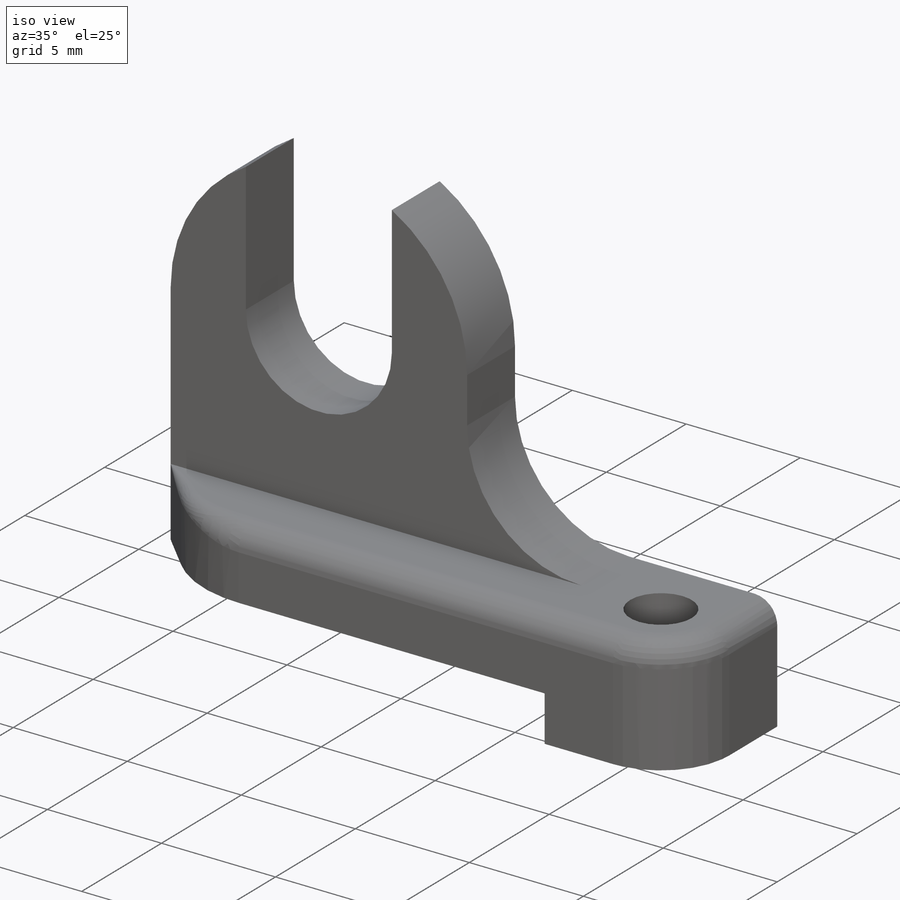
[diagram: iso view]
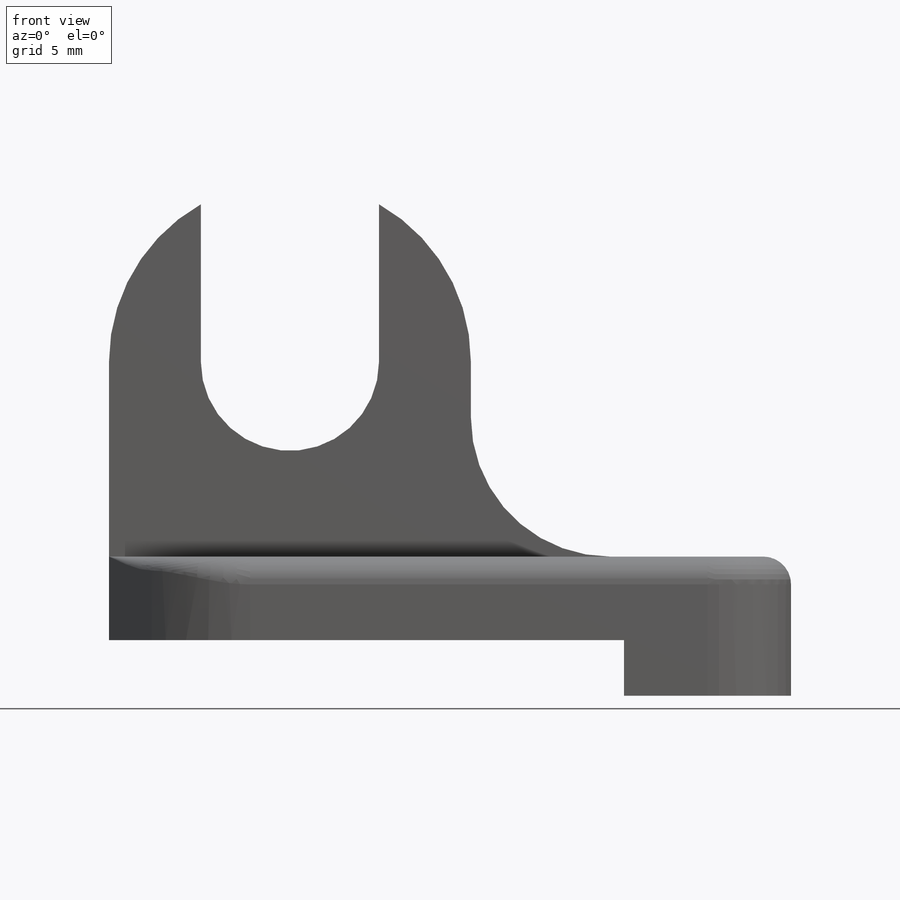
[diagram: front view]
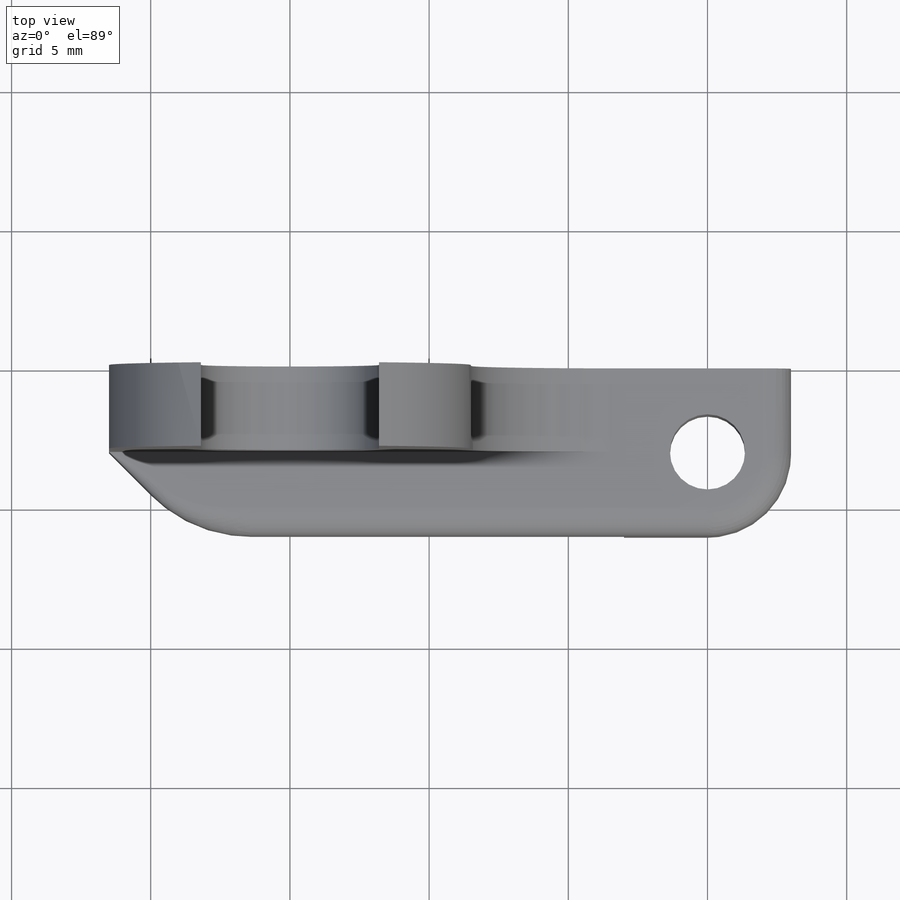
[diagram: top view]
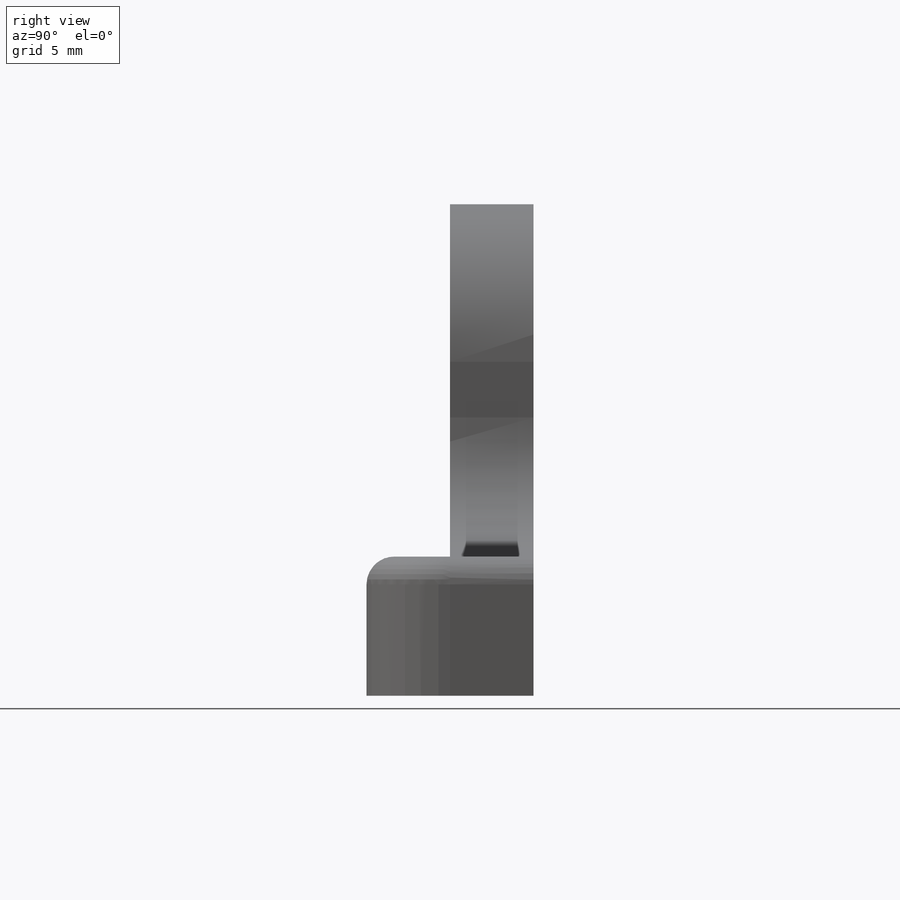
[diagram: right view]
SOLIDWORKS PART (.sldprt)
format: sldprt  version: not decoded by parser v0  size: 252,416 bytes
history: native  units: mm
features: sketch x3, fillet x3, extrude x2, material x1, chamfer x1, cut_extrude x1 (+16 scaffold rows collapsed)
feature tree (27):
  scaffold x16  (default folders/planes/origin — collapsed)
  material  "Material <not specified>"
  sketch  "Sketch1"  dims[D1=3.2mm D2=6.5mm D3=2.0mm D4=12.0mm D5=5.0mm D6=6.0mm D7=18.0mm]
  extrude  "Boss-Extrude1"  Depth=3mm
  sketch  "Sketch2"
  extrude  "Boss-Extrude2"  Depth=3mm
  fillet  "Fillet1"  Radius=3mm
  chamfer  "Chamfer1"  Distance=3mm
  fillet  "Fillet2"  Radius=5mm
  fillet  "Fillet4"  Radius=5mm
  sketch  "Sketch3"  dims[c1.D2=~2.902551mm c1.D3=2.7mm c1.D1=15.0mm c2.D2=3.0mm]
  cut_extrude  "Cut-Extrude1"  Depth=0mm
decode coverage: 9 of 10 modeling features carry decoded parameters
note: ~ marks probable driven/reference dimensions
note: suppression state not decoded; provenance and decode notes live in map.json
